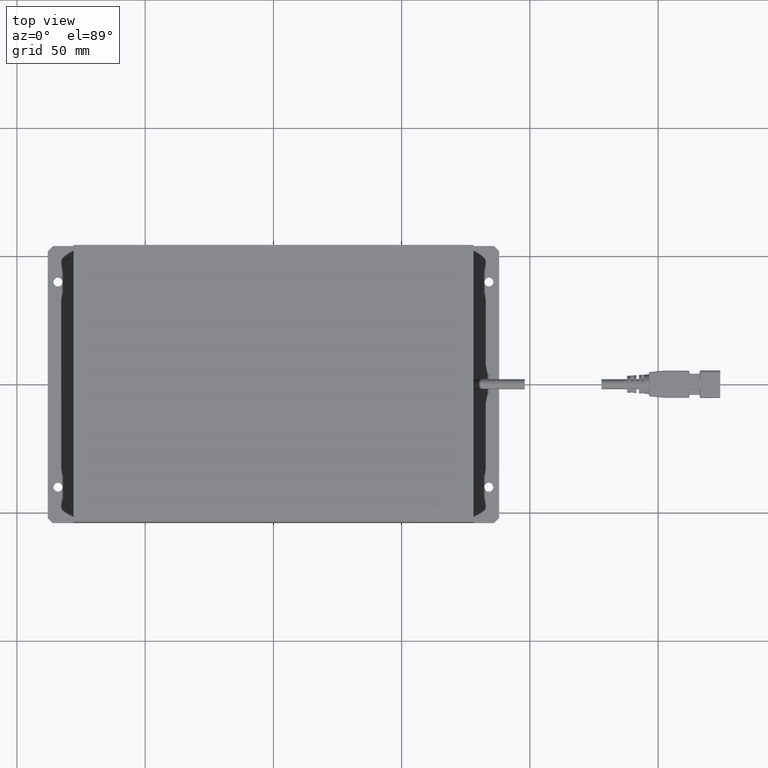
[diagram: clean part render]
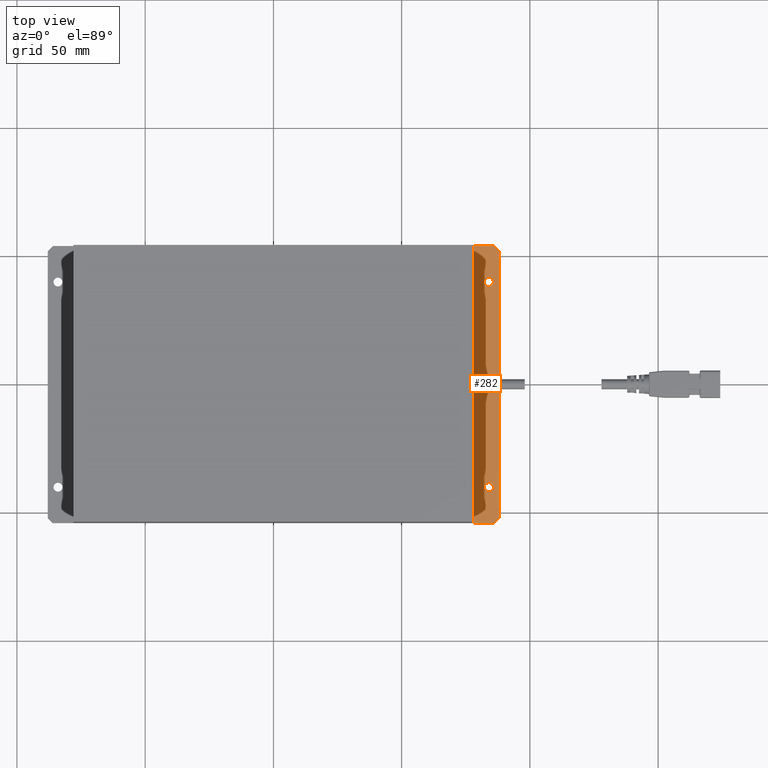
[diagram: same view with one face highlighted and labeled with its STEP entity id]
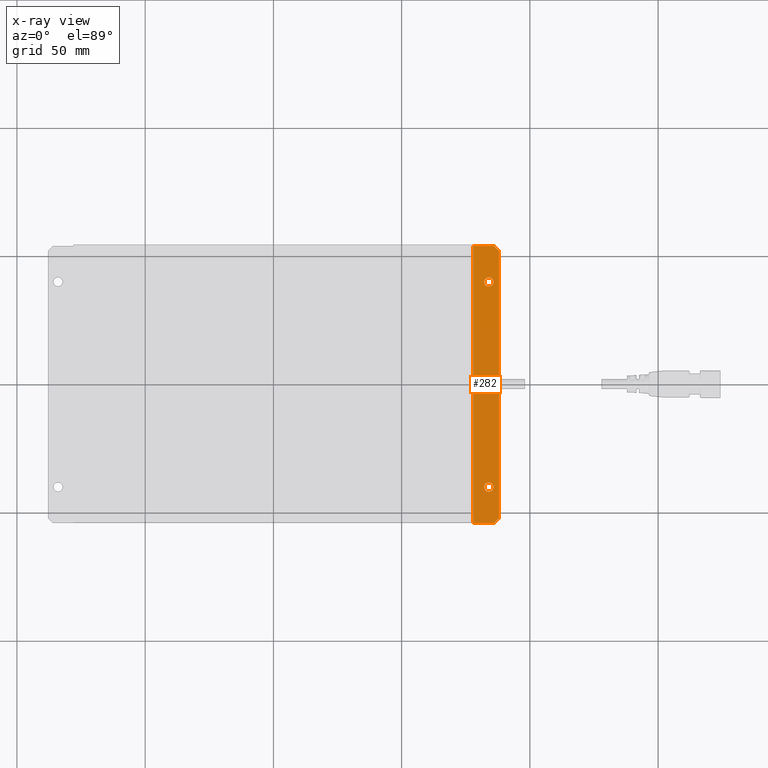
[diagram: x-ray of the same camera — body ghosted, the highlighted face saturated]
A machine part, top view. The second image highlights one B-rep face of the part: STEP entity #282.
The next image is the same camera in x-ray: the body ghosted, the highlighted face saturated — about 0% of this face is hidden behind the body in this view.
In plain terms, the highlighted planar face has unit normal (0, 0, 1).
Its self-contained STEP definition (entity closure, byte-faithful):
#282=ADVANCED_FACE('0:8846',(#695,#696,#697),#698,.T.);
#695=FACE_BOUND('',#1258,.T.);
#696=FACE_BOUND('',#1259,.T.);
#697=FACE_OUTER_BOUND('',#1260,.T.);
#698=PLANE('',#1261);
#1258=EDGE_LOOP('',(#2274));
#1259=EDGE_LOOP('',(#2275));
#1260=EDGE_LOOP('',(#2276,#2277,#2278,#2279,#2280,#2281));
#1261=AXIS2_PLACEMENT_3D('',#2282,#2283,#2284);
#2274=ORIENTED_EDGE('',*,*,#3756,.T.);
#2275=ORIENTED_EDGE('',*,*,#3751,.T.);
#2276=ORIENTED_EDGE('',*,*,#3754,.T.);
#2277=ORIENTED_EDGE('',*,*,#3696,.T.);
#2278=ORIENTED_EDGE('',*,*,#3744,.T.);
#2279=ORIENTED_EDGE('',*,*,#3746,.T.);
#2280=ORIENTED_EDGE('',*,*,#3714,.T.);
#2281=ORIENTED_EDGE('',*,*,#3749,.T.);
#2282=CARTESIAN_POINT('',(0.0,0.0,0.003));
#2283=DIRECTION('',(0.0,0.0,1.0));
#2284=DIRECTION('',(1.0,0.0,0.0));
#3696=EDGE_CURVE('0:8918',#4311,#4312,#4313,.T.);
#3714=EDGE_CURVE('0:8993',#4341,#4339,#4342,.F.);
#3744=EDGE_CURVE('0:8978',#4312,#4387,#4389,.F.);
#3746=EDGE_CURVE('0:8942',#4387,#4341,#4391,.F.);
#3749=EDGE_CURVE('0:8930',#4339,#4393,#4395,.F.);
#3751=EDGE_CURVE('0:9008',#4397,#4397,#4398,.F.);
#3754=EDGE_CURVE('0:8984',#4393,#4311,#4401,.F.);
#3756=EDGE_CURVE('0:9014',#4403,#4403,#4404,.F.);
#4311=VERTEX_POINT('',#5210);
#4312=VERTEX_POINT('',#5211);
#4313=LINE('',#5212,#5213);
#4339=VERTEX_POINT('',#5249);
#4341=VERTEX_POINT('',#5252);
#4342=LINE('',#5253,#5254);
#4387=VERTEX_POINT('',#5316);
#4389=LINE('',#5319,#5320);
#4391=LINE('',#5322,#5323);
#4393=VERTEX_POINT('',#5325);
#4395=LINE('',#5328,#5329);
#4397=VERTEX_POINT('',#5331);
#4398=CIRCLE('',#5332,0.00175);
#4401=LINE('',#5335,#5336);
#4403=VERTEX_POINT('',#5338);
#4404=CIRCLE('',#5339,0.00175);
#5210=CARTESIAN_POINT('',(0.078,0.054,0.003));
#5211=CARTESIAN_POINT('',(0.078,-0.054,0.003));
#5212=CARTESIAN_POINT('',(0.078,0.054,0.003));
#5213=VECTOR('',#6562,1.0);
#5249=CARTESIAN_POINT('',(0.088,0.052,0.003));
#5252=CARTESIAN_POINT('',(0.088,-0.052,0.003));
#5253=CARTESIAN_POINT('',(0.088,0.054,0.003));
#5254=VECTOR('',#6577,1.0);
#5316=CARTESIAN_POINT('',(0.086,-0.054,0.003));
#5319=CARTESIAN_POINT('',(0.088,-0.054,0.003));
#5320=VECTOR('',#6614,1.0);
#5322=CARTESIAN_POINT('',(0.07,-0.07,0.003));
#5323=VECTOR('',#6615,1.0);
#5325=CARTESIAN_POINT('',(0.086,0.054,0.003));
#5328=CARTESIAN_POINT('',(0.07,0.07,0.003));
#5329=VECTOR('',#6617,1.0);
#5331=CARTESIAN_POINT('',(0.08575,0.04,0.003));
#5332=AXIS2_PLACEMENT_3D('',#6618,#6619,#6620);
#5335=CARTESIAN_POINT('',(-0.088,0.054,0.003));
#5336=VECTOR('',#6621,1.0);
#5338=CARTESIAN_POINT('',(0.08575,-0.04,0.003));
#5339=AXIS2_PLACEMENT_3D('',#6622,#6623,#6624);
#6562=DIRECTION('',(0.0,-1.0,0.0));
#6577=DIRECTION('',(0.0,-1.0,0.0));
#6614=DIRECTION('',(-1.0,0.0,0.0));
#6615=DIRECTION('',(-0.707106781186548,-0.707106781186548,0.0));
#6617=DIRECTION('',(0.707106781186548,-0.707106781186548,0.0));
#6618=CARTESIAN_POINT('',(0.084,0.04,0.003));
#6619=DIRECTION('',(0.0,0.0,1.0));
#6620=DIRECTION('',(1.0,0.0,-0.0));
#6621=DIRECTION('',(1.0,0.0,0.0));
#6622=CARTESIAN_POINT('',(0.084,-0.04,0.003));
#6623=DIRECTION('',(0.0,0.0,1.0));
#6624=DIRECTION('',(1.0,0.0,-0.0));